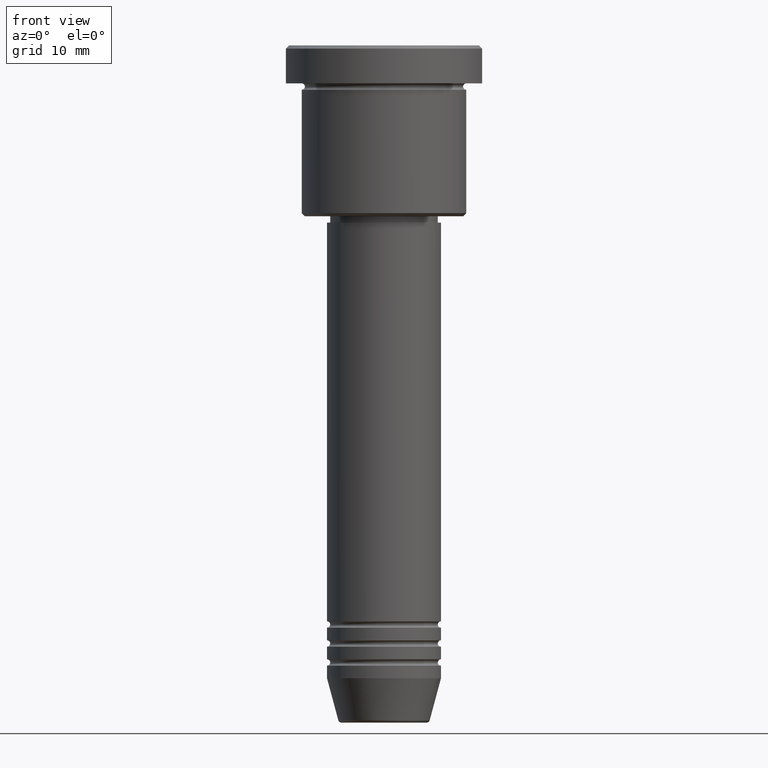
[diagram: clean part render]
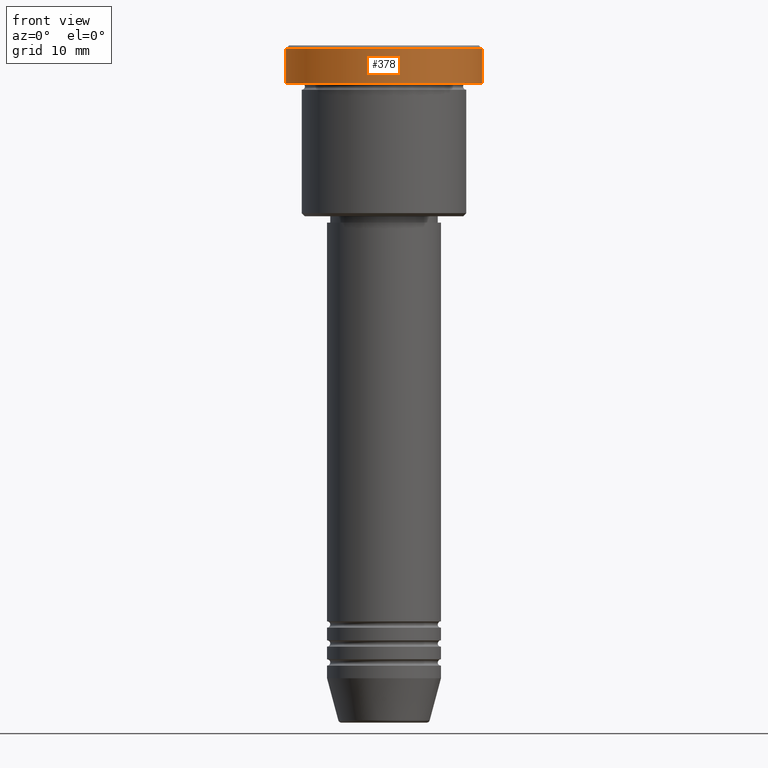
[diagram: same view with one face highlighted and labeled with its STEP entity id]
A machine part, front view. The second image highlights one B-rep face of the part: STEP entity #378.
In plain terms, the highlighted cylindrical surface (partial cylindrical patch) has radius 15.5 mm, axis along (-0, -0, 1).
Its self-contained STEP definition (entity closure, byte-faithful):
#10 = CARTESIAN_POINT ( 'NONE',  ( -15.50000000000000000, 1.898202538678397557E-15, 0.000000000000000000 ) ) ;
#26 = DIRECTION ( 'NONE',  ( -0.000000000000000000, -0.000000000000000000, 1.000000000000000000 ) ) ;
#52 = CYLINDRICAL_SURFACE ( 'NONE', #244, 15.50000000000000000 ) ;
#55 = AXIS2_PLACEMENT_3D ( 'NONE', #721, #897, #78 ) ;
#78 = DIRECTION ( 'NONE',  ( 1.000000000000000000, 0.000000000000000000, 0.000000000000000000 ) ) ;
#101 = LINE ( 'NONE', #10, #426 ) ;
#102 = VERTEX_POINT ( 'NONE', #961 ) ;
#219 = DIRECTION ( 'NONE',  ( 1.000000000000000000, 0.000000000000000000, 0.000000000000000000 ) ) ;
#230 = DIRECTION ( 'NONE',  ( -0.000000000000000000, -0.000000000000000000, 1.000000000000000000 ) ) ;
#244 = AXIS2_PLACEMENT_3D ( 'NONE', #478, #789, #219 ) ;
#255 = EDGE_CURVE ( 'NONE', #1029, #102, #101, .T. ) ;
#293 = EDGE_LOOP ( 'NONE', ( #793, #298, #857, #597 ) ) ;
#298 = ORIENTED_EDGE ( 'NONE', *, *, #717, .T. ) ;
#316 = LINE ( 'NONE', #1049, #801 ) ;
#324 = VERTEX_POINT ( 'NONE', #464 ) ;
#378 = ADVANCED_FACE ( 'NONE', ( #601 ), #52, .T. ) ;
#397 = VERTEX_POINT ( 'NONE', #692 ) ;
#426 = VECTOR ( 'NONE', #26, 1000.000000000000000 ) ;
#438 = EDGE_CURVE ( 'NONE', #397, #102, #1122, .T. ) ;
#464 = CARTESIAN_POINT ( 'NONE',  ( 15.50000000000000000, 0.000000000000000000, -5.999999999999995559 ) ) ;
#478 = CARTESIAN_POINT ( 'NONE',  ( 0.000000000000000000, 0.000000000000000000, 0.000000000000000000 ) ) ;
#488 = DIRECTION ( 'NONE',  ( 0.000000000000000000, 0.000000000000000000, -1.000000000000000000 ) ) ;
#512 = CARTESIAN_POINT ( 'NONE',  ( 0.000000000000000000, 0.000000000000000000, -0.4999999999999709677 ) ) ;
#530 = CIRCLE ( 'NONE', #55, 15.50000000000000000 ) ;
#577 = CARTESIAN_POINT ( 'NONE',  ( -15.50000000000000000, 1.898202538678397557E-15, -5.999999999999995559 ) ) ;
#597 = ORIENTED_EDGE ( 'NONE', *, *, #438, .T. ) ;
#601 = FACE_OUTER_BOUND ( 'NONE', #293, .T. ) ;
#692 = CARTESIAN_POINT ( 'NONE',  ( 15.50000000000000000, 0.000000000000000000, -0.4999999999999709677 ) ) ;
#717 = EDGE_CURVE ( 'NONE', #1029, #324, #530, .T. ) ;
#721 = CARTESIAN_POINT ( 'NONE',  ( 0.000000000000000000, 0.000000000000000000, -5.999999999999995559 ) ) ;
#789 = DIRECTION ( 'NONE',  ( -0.000000000000000000, -0.000000000000000000, 1.000000000000000000 ) ) ;
#793 = ORIENTED_EDGE ( 'NONE', *, *, #255, .F. ) ;
#801 = VECTOR ( 'NONE', #230, 1000.000000000000000 ) ;
#857 = ORIENTED_EDGE ( 'NONE', *, *, #1156, .T. ) ;
#897 = DIRECTION ( 'NONE',  ( -0.000000000000000000, -0.000000000000000000, 1.000000000000000000 ) ) ;
#961 = CARTESIAN_POINT ( 'NONE',  ( -15.50000000000000000, 1.898202538678397557E-15, -0.4999999999999709677 ) ) ;
#990 = AXIS2_PLACEMENT_3D ( 'NONE', #512, #488, #1042 ) ;
#1029 = VERTEX_POINT ( 'NONE', #577 ) ;
#1042 = DIRECTION ( 'NONE',  ( 1.000000000000000000, 0.000000000000000000, 0.000000000000000000 ) ) ;
#1049 = CARTESIAN_POINT ( 'NONE',  ( 15.50000000000000000, 0.000000000000000000, 0.000000000000000000 ) ) ;
#1122 = CIRCLE ( 'NONE', #990, 15.50000000000000000 ) ;
#1156 = EDGE_CURVE ( 'NONE', #324, #397, #316, .T. ) ;